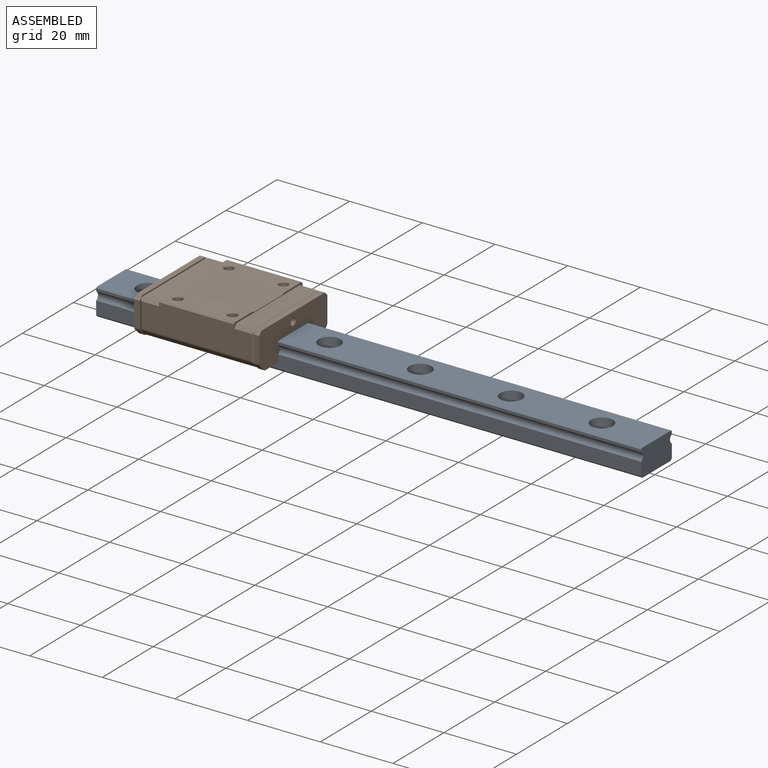
[diagram: assembled view]
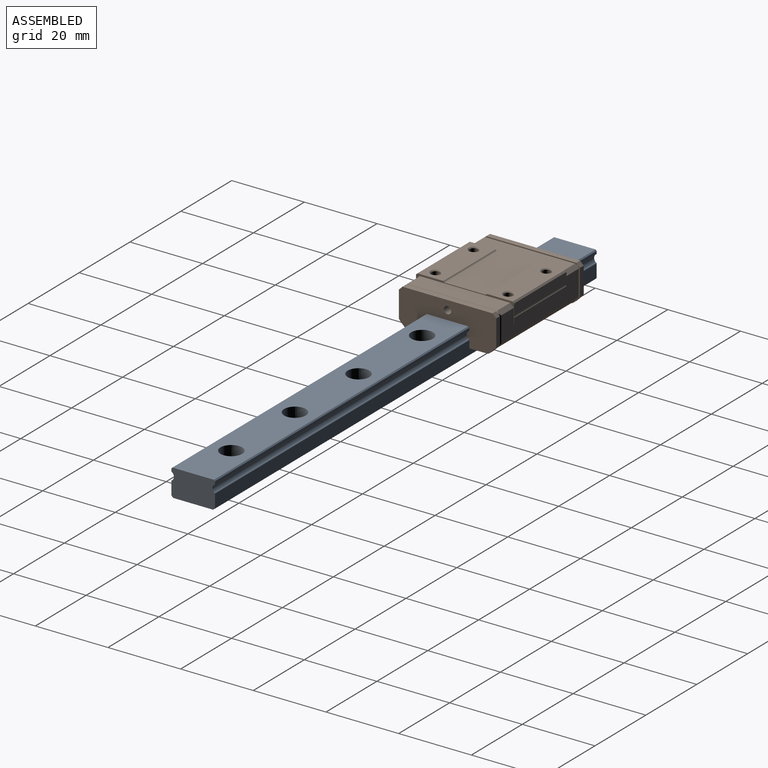
[diagram: assembled view, second angle]
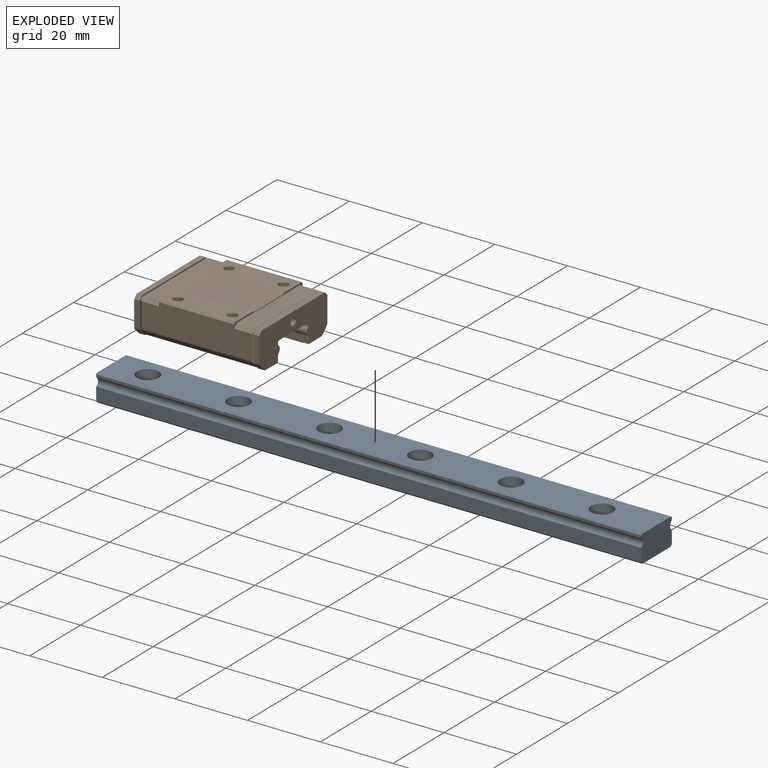
[diagram: exploded view]
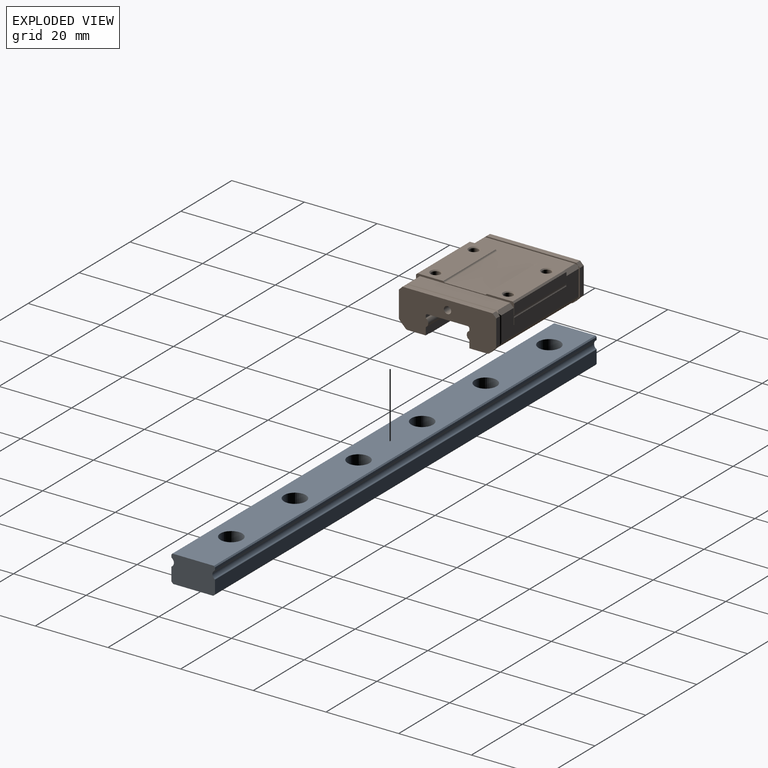
[diagram: exploded view, second angle]
ASSEMBLY  parts=2 mates=2
PART A: 42 faces, bbox 150x12x7.5 mm
  f0: cylinder r=1.75mm len=4.5mm, axis (0,0,1), area 49.5mm2, adj f12,f40
  f1: cylinder r=1.75mm len=4.5mm, axis (0,0,1), area 49.5mm2, adj f12,f38
  f2: cylinder r=1.75mm len=4.5mm, axis (0,0,1), area 49.5mm2, adj f12,f36
  f3: plane 150x0.3mm, normal (0,-0.71,0.71), area 63.6mm2, adj f4,f17,f19,f35
  f4: plane 150x11.4mm, normal (0,0,1), area 1540.4mm2, adj f3,f5,f17,f23,f24,f28,f29,f33
  f5: plane 150x0.3mm, normal (0,0.71,0.71), area 63.6mm2, adj f4,f6,f17,f35
  f6: plane 150x0.69mm, normal (0,1,0), area 103.1mm2, adj f5,f7,f17,f35
  f7: cylinder r=0.15mm len=150mm, axis (1,0,0), area 23.6mm2, adj f6,f8,f17,f35
  f8: cylinder r=1.25mm len=150mm, axis (1,0,0), area 392.7mm2, adj f7,f9,f17,f35
  f9: cylinder r=0.15mm len=150mm, axis (1,0,0), area 23.6mm2, adj f8,f10,f17,f35
  f10: plane 150x3.59mm, normal (0,1,0), area 538.1mm2, adj f9,f11,f17,f35
  f11: plane 150x0.5mm, normal (0,0.71,-0.71), area 106.1mm2, adj f10,f12,f17,f35
  f12: plane 150x11mm, normal (0,0,-1), area 1592.3mm2, adj f0,f1,f2,f11,f13,f17,f20,f21
  f13: plane 150x0.5mm, normal (0,-0.71,-0.71), area 106.1mm2, adj f12,f14,f17,f35
  f14: plane 150x3.59mm, normal (0,-1,0), area 538.1mm2, adj f13,f15,f17,f35
  f15: cylinder r=0.15mm len=150mm, axis (1,0,0), area 23.6mm2, adj f14,f16,f17,f35
  f16: cylinder r=1.25mm len=150mm, axis (1,0,0), area 392.7mm2, adj f15,f17,f18,f35
  f17: plane 12x7.5mm, normal (-1,0,0), area 87.4mm2, adj f3,f4,f5,f6,f7,f8,f9,f10
  f18: cylinder r=0.15mm len=150mm, axis (1,0,0), area 23.6mm2, adj f16,f17,f19,f35
  f19: plane 150x0.69mm, normal (0,-1,0), area 103.1mm2, adj f3,f17,f18,f35
  f20: cylinder r=1.75mm len=3.5mm, axis (0,0,1), area 16.5mm2, adj f12,f21,f22
  f21: cylinder r=1.75mm len=3.5mm, axis (0,0,1), area 16.5mm2, adj f12,f20,f22
  f22: plane 6x6mm, normal (0,0,1), area 18.7mm2, adj f20,f21,f23,f24
  f23: cylinder r=3mm len=6mm, axis (0,0,1), area 42.4mm2, adj f4,f22,f24
  f24: cylinder r=3mm len=6mm, axis (0,0,1), area 42.4mm2, adj f4,f22,f23
  f25: cylinder r=1.75mm len=3.5mm, axis (0,0,1), area 16.5mm2, adj f12,f26,f27
  f26: cylinder r=1.75mm len=3.5mm, axis (0,0,1), area 16.5mm2, adj f12,f25,f27
  f27: plane 6x6mm, normal (0,0,1), area 18.7mm2, adj f25,f26,f28,f29
  f28: cylinder r=3mm len=6mm, axis (0,0,1), area 42.4mm2, adj f4,f27,f29
  f29: cylinder r=3mm len=6mm, axis (0,0,1), area 42.4mm2, adj f4,f27,f28
  f30: cylinder r=1.75mm len=3.5mm, axis (0,0,1), area 16.5mm2, adj f12,f31,f32
  f31: cylinder r=1.75mm len=3.5mm, axis (0,0,1), area 16.5mm2, adj f12,f30,f32
  f32: plane 6x6mm, normal (0,0,1), area 18.7mm2, adj f30,f31,f33,f34
  f33: cylinder r=3mm len=6mm, axis (0,0,1), area 42.4mm2, adj f4,f32,f34
  f34: cylinder r=3mm len=6mm, axis (0,0,1), area 42.4mm2, adj f4,f32,f33
  f35: plane 12x7.5mm, normal (1,0,0), area 87.4mm2, adj f3,f4,f5,f6,f7,f8,f9,f10
  f36: plane 6x6mm, normal (0,0,1), area 18.7mm2, adj f2,f37
  f37: cylinder r=3mm len=6mm, axis (0,0,1), area 56.5mm2, adj f4,f36
  f38: plane 6x6mm, normal (0,0,1), area 18.7mm2, adj f1,f39
  f39: cylinder r=3mm len=6mm, axis (0,0,1), area 56.5mm2, adj f4,f38
  f40: plane 6x6mm, normal (0,0,1), area 18.7mm2, adj f0,f41
  f41: cylinder r=3mm len=6mm, axis (0,0,1), area 56.5mm2, adj f4,f40
PART B: 128 faces, bbox 34.4x27x11 mm
  f0: plane 0.44x0.05mm, normal (-1,0,0), area 0mm2, adj f1,f85
  f1: plane 30.4x6.69mm, normal (0,1,0), area 115.5mm2, adj f0,f2,f9,f10,f32,f34,f63,f86
  f2: plane 5.4x1mm, normal (0,0.71,0.71), area 7.3mm2, adj f1,f3,f4,f32,f90
  f3: plane 25.8x0.5mm, normal (0.71,0,0.71), area 17.9mm2, adj f2,f4,f5,f27
  f4: plane 24.8x4.9mm, normal (0,0,1), area 121.5mm2, adj f2,f3,f5,f90
  f5: plane 5.4x1mm, normal (0,-0.71,0.71), area 7.3mm2, adj f3,f4,f6,f24,f90
  f6: plane 30.4x6.69mm, normal (0,-1,0), area 115.5mm2, adj f5,f7,f9,f24,f68,f69,f90,f91
  f7: plane 5.4x1mm, normal (0,-0.71,0.71), area 7.3mm2, adj f6,f8,f9,f11,f69
  f8: plane 24.8x4.9mm, normal (0,0,1), area 121.5mm2, adj f7,f9,f10,f11
  f9: plane 27x5.76mm, normal (-1,0,0), area 11.6mm2, adj f1,f6,f7,f8,f10,f85,f91,f92
  f10: plane 5.4x1mm, normal (0,0.71,0.71), area 7.3mm2, adj f1,f8,f9,f11,f34
  f11: plane 25.8x0.5mm, normal (-0.71,0,0.71), area 17.9mm2, adj f7,f8,f10,f12
  f12: plane 25.8x0.5mm, normal (1,0,0), area 12.7mm2, adj f11,f13,f38,f39
  f13: plane 1.5x1mm, normal (0,-0.71,0.71), area 2.1mm2, adj f12,f14,f39,f70,f78
  f14: plane 26.8x10.4mm, normal (-1,0,0), area 207.6mm2, adj f13,f15,f36,f37,f38,f39,f40,f41
  f15: cylinder r=0.15mm len=34.4mm, axis (1,0,0), area 5.4mm2, adj f14,f16,f59,f77
  f16: plane 26.8x10.4mm, normal (1,0,0), area 207.6mm2, adj f15,f17,f18,f26,f28,f29,f30,f49
  f17: cylinder r=1mm len=1.5mm, axis (1,0,0), area 1.2mm2, adj f16,f18,f25,f67
  f18: plane 4.89x1.5mm, normal (0,0,-1), area 7.3mm2, adj f16,f17,f19,f25,f77
  f19: plane 0.19x0.1mm, normal (1,0,0), area 0mm2, adj f18,f20,f76,f77
  f20: plane 31.4x0.3mm, normal (0,-0.71,-0.71), area 13.3mm2, adj f19,f21,f25,f70,f75,f76
  f21: plane 31.4x4.5mm, normal (0,0,-1), area 141.2mm2, adj f20,f22,f25,f70
  f22: cylinder r=1mm len=31.4mm, axis (1,0,0), area 24.7mm2, adj f21,f23,f25,f70
  f23: plane 31.4x1.51mm, normal (0,-0.71,-0.71), area 67.2mm2, adj f22,f24,f25,f68,f69,f70
  f24: plane 8.1x0.5mm, normal (0.71,-0.71,0), area 5.3mm2, adj f5,f6,f23,f25,f68
  f25: plane 9.9x7.21mm, normal (-1,0,0), area 5.2mm2, adj f17,f18,f20,f21,f22,f23,f24,f26
  f26: plane 1.5x1mm, normal (0,-0.71,0.71), area 2.1mm2, adj f16,f25,f27,f64,f65
  f27: plane 25.8x0.5mm, normal (-1,0,0), area 12.7mm2, adj f3,f26,f28,f64
  f28: plane 1.5x1mm, normal (0,0.71,0.71), area 2.1mm2, adj f16,f27,f29,f31,f64
  f29: plane 6.89x1.5mm, normal (0,1,0), area 10.3mm2, adj f16,f28,f30,f31
  f30: cylinder r=1mm len=1.5mm, axis (1,0,0), area 1.2mm2, adj f16,f29,f31,f62
  f31: plane 9.9x7.21mm, normal (-1,0,0), area 5.2mm2, adj f28,f29,f30,f32,f33,f46,f47,f48
  f32: plane 8.1x0.5mm, normal (0.71,0.71,0), area 5.3mm2, adj f1,f2,f31,f33,f63
  f33: plane 31.4x1.51mm, normal (0,0.71,-0.71), area 67.2mm2, adj f31,f32,f34,f35,f48,f63
  f34: plane 8.1x0.5mm, normal (-0.71,0.71,0), area 5.3mm2, adj f1,f10,f33,f35,f63
  f35: plane 9.9x7.21mm, normal (1,0,0), area 5.2mm2, adj f33,f34,f36,f37,f38,f40,f41,f42
  f36: cylinder r=1mm len=1.5mm, axis (1,0,0), area 1.2mm2, adj f14,f35,f37,f40
  f37: plane 6.89x1.5mm, normal (0,1,0), area 10.3mm2, adj f14,f35,f36,f38
  f38: plane 1.5x1mm, normal (0,0.71,0.71), area 2.1mm2, adj f12,f14,f35,f37,f39
  f39: plane 24.8x1.5mm, normal (0,0,1), area 37.2mm2, adj f12,f13,f14,f38
  f40: plane 1.51x1.51mm, normal (0,0.71,-0.71), area 3.2mm2, adj f14,f35,f36,f41
  f41: cylinder r=1mm len=1.5mm, axis (1,0,0), area 1.2mm2, adj f14,f35,f40,f42
  f42: plane 4.89x1.5mm, normal (0,0,-1), area 7.3mm2, adj f14,f35,f41,f43,f49
  f43: plane 0.19x0.1mm, normal (-1,0,0), area 0mm2, adj f42,f44,f46,f49
  f44: plane 31.4x0.09mm, normal (0,0,-1), area 2.8mm2, adj f43,f45,f46,f49
  f45: plane 0.19x0.1mm, normal (1,0,0), area 0mm2, adj f44,f46,f49,f60
  f46: plane 31.4x0.3mm, normal (0,0.71,-0.71), area 13.3mm2, adj f31,f35,f43,f44,f45,f47
  f47: plane 31.4x4.5mm, normal (0,0,-1), area 141.2mm2, adj f31,f35,f46,f48
  f48: cylinder r=1mm len=31.4mm, axis (1,0,0), area 24.7mm2, adj f31,f33,f35,f47
  f49: plane 34.4x2.09mm, normal (0,-1,0), area 71.5mm2, adj f14,f16,f42,f43,f44,f45,f50,f60
  f50: cylinder r=0.15mm len=34.4mm, axis (1,0,0), area 5.4mm2, adj f14,f16,f49,f51
  f51: cylinder r=1.25mm len=34.4mm, axis (1,0,0), area 90.1mm2, adj f14,f16,f50,f52
  f52: cylinder r=0.15mm len=34.4mm, axis (1,0,0), area 5.4mm2, adj f14,f16,f51,f53
  f53: plane 34.4x0.69mm, normal (0,-1,0), area 23.7mm2, adj f14,f16,f52,f54
  f54: plane 34.4x0.3mm, normal (0,-0.71,-0.71), area 14.6mm2, adj f14,f16,f53,f55
  f55: plane 34.4x11.4mm, normal (0,0,-1), area 392.2mm2, adj f14,f16,f54,f56
  f56: plane 34.4x0.3mm, normal (0,0.71,-0.71), area 14.6mm2, adj f14,f16,f55,f57
  f57: plane 34.4x0.69mm, normal (0,1,0), area 23.7mm2, adj f14,f16,f56,f58
  f58: cylinder r=0.15mm len=34.4mm, axis (1,0,0), area 5.4mm2, adj f14,f16,f57,f59
  f59: cylinder r=1.25mm len=34.4mm, axis (1,0,0), area 90.1mm2, adj f14,f15,f16,f58
  f60: plane 4.89x1.5mm, normal (0,0,-1), area 7.3mm2, adj f16,f31,f45,f49,f61
  f61: cylinder r=1mm len=1.5mm, axis (1,0,0), area 1.2mm2, adj f16,f31,f60,f62
  f62: plane 1.51x1.51mm, normal (0,0.71,-0.71), area 3.2mm2, adj f16,f30,f31,f61
  f63: cylinder r=1mm len=30.99mm, axis (1,0,0), area 24mm2, adj f1,f32,f33,f34
  f64: plane 24.8x1.5mm, normal (0,0,1), area 37.2mm2, adj f16,f26,f27,f28
  f65: plane 6.89x1.5mm, normal (0,-1,0), area 10.3mm2, adj f16,f25,f26,f66
  f66: cylinder r=1mm len=1.5mm, axis (1,0,0), area 1.2mm2, adj f16,f25,f65,f67
  f67: plane 1.51x1.51mm, normal (0,-0.71,-0.71), area 3.2mm2, adj f16,f17,f25,f66
  f68: cylinder r=1mm len=30.99mm, axis (1,0,0), area 24mm2, adj f6,f23,f24,f69
  f69: plane 8.1x0.5mm, normal (-0.71,-0.71,0), area 5.3mm2, adj f6,f7,f23,f68,f70
  f70: plane 9.9x7.21mm, normal (1,0,0), area 5.2mm2, adj f13,f20,f21,f22,f23,f69,f71,f72
  f71: cylinder r=1mm len=1.5mm, axis (1,0,0), area 1.2mm2, adj f14,f70,f72,f78
  f72: plane 1.51x1.51mm, normal (0,-0.71,-0.71), area 3.2mm2, adj f14,f70,f71,f73
  f73: cylinder r=1mm len=1.5mm, axis (1,0,0), area 1.2mm2, adj f14,f70,f72,f74
  f74: plane 4.89x1.5mm, normal (0,0,-1), area 7.3mm2, adj f14,f70,f73,f75,f77
  f75: plane 0.19x0.1mm, normal (-1,0,0), area 0mm2, adj f20,f74,f76,f77
  f76: plane 31.4x0.09mm, normal (0,0,-1), area 2.8mm2, adj f19,f20,f75,f77
  f77: plane 34.4x2.09mm, normal (0,1,0), area 71.5mm2, adj f14,f15,f16,f18,f19,f74,f75,f76
  f78: plane 6.89x1.5mm, normal (0,-1,0), area 10.3mm2, adj f13,f14,f70,f71
  f79: cylinder r=1mm len=4mm, axis (-1,0,0), area 12.6mm2, adj f16,f80,f81
  f80: cylinder r=1mm len=4mm, axis (-1,0,0), area 12.6mm2, adj f16,f79,f81
  f81: plane 2x2mm, normal (1,0,0), area 3.1mm2, adj f79,f80
  f82: cylinder r=1mm len=4mm, axis (-1,0,0), area 12.6mm2, adj f14,f83,f84
  f83: cylinder r=1mm len=4mm, axis (-1,0,0), area 12.6mm2, adj f14,f82,f84
  f84: plane 2x2mm, normal (-1,0,0), area 3.1mm2, adj f82,f83
  f85: cylinder r=0.5mm len=20.6mm, axis (1,0,0), area 16.4mm2, adj f0,f9,f86,f87,f89,f90,f102,f127
  f86: plane 1.94x0.1mm, normal (-1,0,0), area 0.2mm2, adj f1,f85,f87,f88
  f87: plane 20.6x1.74mm, normal (0,1,0), area 35.9mm2, adj f85,f86,f88,f89
  f88: plane 20.6x0.1mm, normal (0,0.51,-0.86), area 2.4mm2, adj f1,f86,f87,f89
  f89: plane 1.94x0.1mm, normal (1,0,0), area 0.2mm2, adj f1,f85,f87,f88
  f90: plane 27x5.76mm, normal (1,0,0), area 11.6mm2, adj f1,f2,f4,f5,f6,f85,f91,f92
  f91: plane 20.6x0.1mm, normal (0,-0.51,-0.86), area 2.4mm2, adj f6,f9,f90,f92
  f92: plane 20.6x5.3mm, normal (0,-1,0), area 109.2mm2, adj f9,f90,f91,f93
  f93: plane 20.6x0.4mm, normal (0,-0.71,0.71), area 11.7mm2, adj f9,f90,f92,f94
  f94: plane 20.6x7.1mm, normal (0,0,1), area 132.1mm2, adj f9,f90,f93,f95,f115,f116,f121,f122
  f95: plane 20.6x0.15mm, normal (0,0.71,0.71), area 4.5mm2, adj f9,f90,f94,f96
  f96: cylinder r=0.5mm len=20.6mm, axis (1,0,0), area 8.1mm2, adj f9,f90,f95,f97
  f97: plane 20.6x10.99mm, normal (0,0,1), area 226.3mm2, adj f9,f90,f96,f98
  f98: cylinder r=0.5mm len=20.6mm, axis (1,0,0), area 8.1mm2, adj f9,f90,f97,f99
  f99: plane 20.6x0.15mm, normal (0,-0.71,0.71), area 4.5mm2, adj f9,f90,f98,f100
  f100: plane 20.6x7.1mm, normal (0,0,1), area 132.1mm2, adj f9,f90,f99,f101,f103,f104,f109,f110
  f101: plane 20.6x0.4mm, normal (0,0.71,0.71), area 11.7mm2, adj f9,f90,f100,f102
  f102: plane 20.6x2.84mm, normal (0,1,0), area 58.6mm2, adj f9,f85,f90,f101
  f103: cone r=1.5mm half-angle=45deg, axis (0,0,1), area 1.6mm2, adj f100,f104,f106
  f104: cone r=1.5mm half-angle=45deg, axis (0,0,1), area 1.6mm2, adj f100,f103,f105
  f105: cylinder r=1.23mm len=3.57mm, axis (0,0,1), area 13.8mm2, adj f104,f106,f108
  f106: cylinder r=1.23mm len=3.57mm, axis (0,0,1), area 13.8mm2, adj f103,f105,f107
  f107: cone r=1.23mm half-angle=60deg, axis (0,0,1), area 2.7mm2, adj f106,f108
  f108: cone r=1.23mm half-angle=60deg, axis (0,0,1), area 2.7mm2, adj f105,f107
  f109: cone r=1.5mm half-angle=45deg, axis (0,0,1), area 1.6mm2, adj f100,f110,f112
  f110: cone r=1.5mm half-angle=45deg, axis (0,0,1), area 1.6mm2, adj f100,f109,f111
  f111: cylinder r=1.23mm len=3.57mm, axis (0,0,1), area 13.8mm2, adj f110,f112,f114
  f112: cylinder r=1.23mm len=3.57mm, axis (0,0,1), area 13.8mm2, adj f109,f111,f113
  f113: cone r=1.23mm half-angle=60deg, axis (0,0,1), area 2.7mm2, adj f112,f114
  f114: cone r=1.23mm half-angle=60deg, axis (0,0,1), area 2.7mm2, adj f111,f113
  f115: cone r=1.5mm half-angle=45deg, axis (0,0,1), area 1.6mm2, adj f94,f116,f118
  f116: cone r=1.5mm half-angle=45deg, axis (0,0,1), area 1.6mm2, adj f94,f115,f117
  f117: cylinder r=1.23mm len=3.57mm, axis (0,0,1), area 13.8mm2, adj f116,f118,f120
  f118: cylinder r=1.23mm len=3.57mm, axis (0,0,1), area 13.8mm2, adj f115,f117,f119
  f119: cone r=1.23mm half-angle=60deg, axis (0,0,1), area 2.7mm2, adj f118,f120
  f120: cone r=1.23mm half-angle=60deg, axis (0,0,1), area 2.7mm2, adj f117,f119
  f121: cone r=1.5mm half-angle=45deg, axis (0,0,1), area 1.6mm2, adj f94,f122,f124
  f122: cone r=1.5mm half-angle=45deg, axis (0,0,1), area 1.6mm2, adj f94,f121,f123
  f123: cylinder r=1.23mm len=3.57mm, axis (0,0,1), area 13.8mm2, adj f122,f124,f126
  f124: cylinder r=1.23mm len=3.57mm, axis (0,0,1), area 13.8mm2, adj f121,f123,f125
  f125: cone r=1.23mm half-angle=60deg, axis (0,0,1), area 2.7mm2, adj f124,f126
  f126: cone r=1.23mm half-angle=60deg, axis (0,0,1), area 2.7mm2, adj f123,f125
  f127: plane 0.44x0.05mm, normal (1,0,0), area 0mm2, adj f1,f85
PLACE A t=(-32.15,40.94,63.85)mm fixed
PLACE B t=(-9.31,40.94,65.85)mm
MATE parallel B.f55 <-> A.f4  axis (0,0,-1) through (-9.31,40.94,71.35)mm
MATE parallel B.f49 <-> A.f10  axis (0,-1,0) through (-9.31,46.94,65.85)mm
